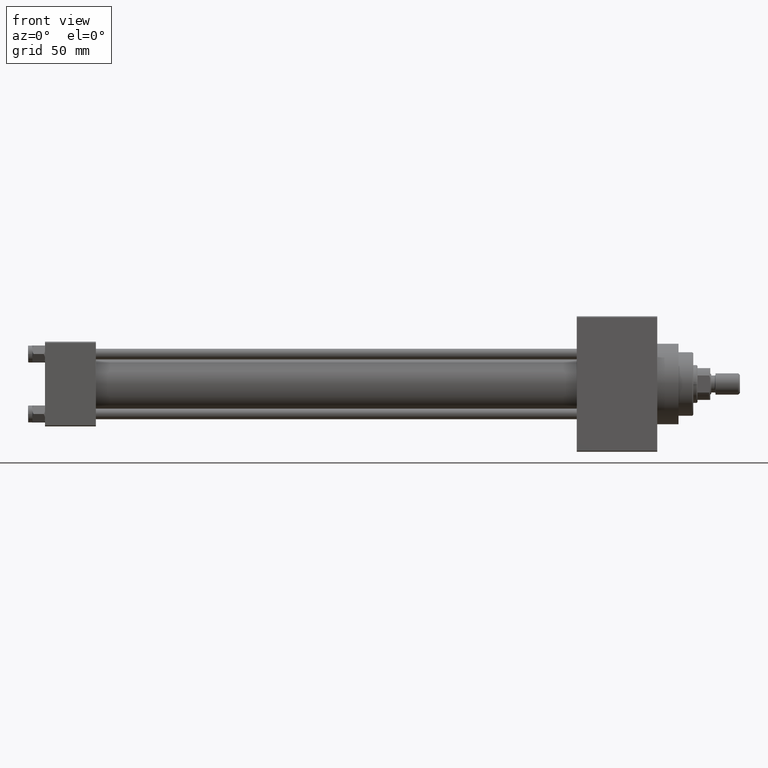
[diagram: clean part render]
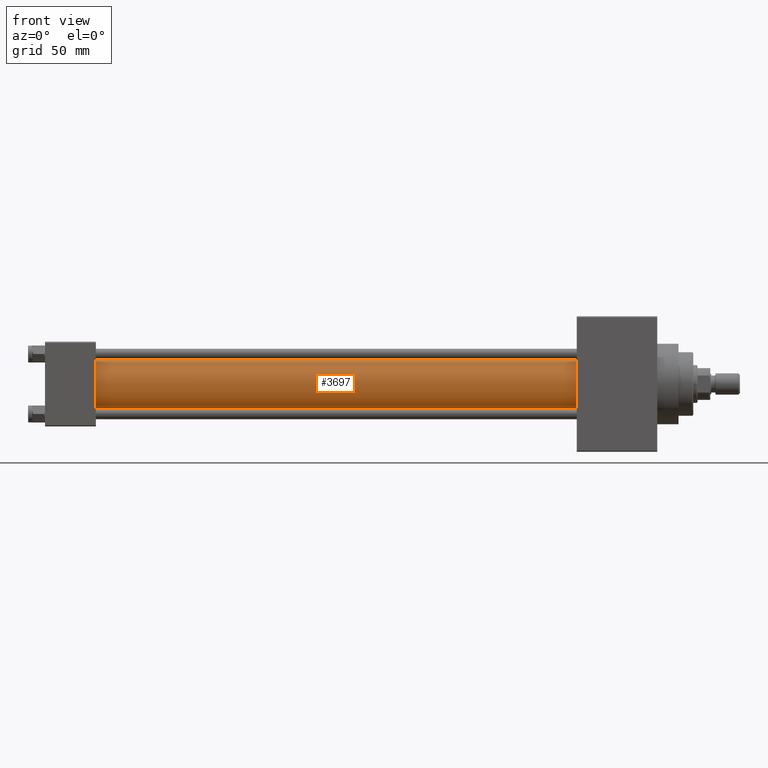
[diagram: same view with one face highlighted and labeled with its STEP entity id]
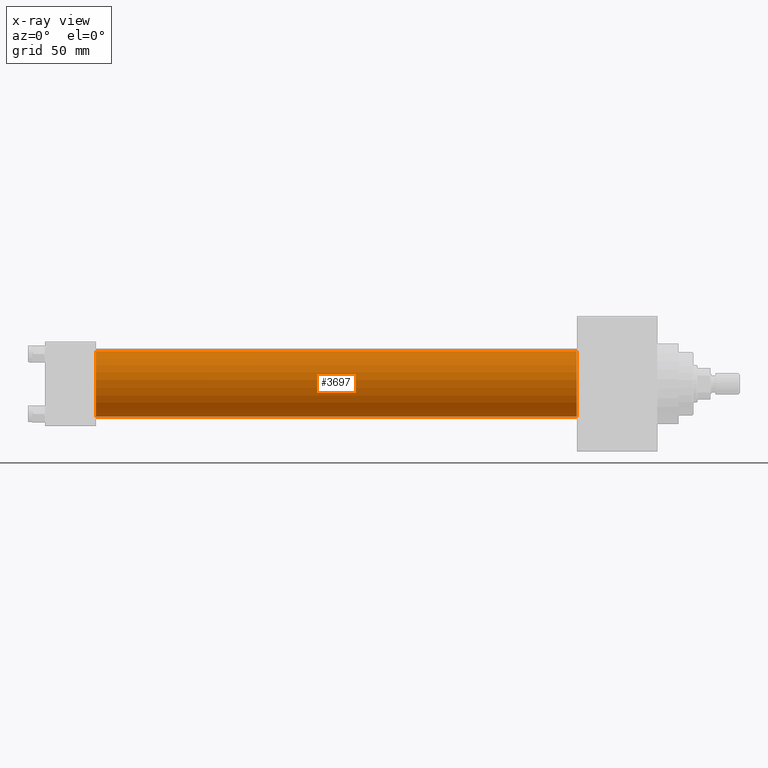
[diagram: x-ray of the same camera — body ghosted, the highlighted face saturated]
A machine part, front view. The second image highlights one B-rep face of the part: STEP entity #3697.
The next image is the same camera in x-ray: the body ghosted, the highlighted face saturated — about 0% of this face is hidden behind the body in this view.
In plain terms, the highlighted cylindrical surface (edge-blend (fillet) strip) has radius 15.5 mm, axis along (-1, -0, -0).
Its self-contained STEP definition (entity closure, byte-faithful):
#3582 = AXIS2_PLACEMENT_3D ( 'NONE', #23413, #38961, #46214 ) ;
#3697 = ADVANCED_FACE ( 'NONE', ( #35860 ), #15864, .T. ) ;
#5629 = VERTEX_POINT ( 'NONE', #40402 ) ;
#6224 = ORIENTED_EDGE ( 'NONE', *, *, #46402, .T. ) ;
#6326 = CARTESIAN_POINT ( 'NONE',  ( 23.99999999999999289, -7.038826752868134786E-16, -15.50000000000000000 ) ) ;
#10087 = DIRECTION ( 'NONE',  ( -1.000000000000000000, -0.000000000000000000, -0.000000000000000000 ) ) ;
#13102 = CIRCLE ( 'NONE', #39488, 15.50000000000000000 ) ;
#13773 = CARTESIAN_POINT ( 'NONE',  ( 23.99999999999999289, -2.602085213965210642E-15, 15.50000000000000000 ) ) ;
#15864 = CYLINDRICAL_SURFACE ( 'NONE', #26291, 15.50000000000000000 ) ;
#17770 = CARTESIAN_POINT ( 'NONE',  ( 251.0000000000000000, -2.602085213965210642E-15, 15.50000000000000000 ) ) ;
#18987 = EDGE_CURVE ( 'NONE', #23247, #43204, #39580, .T. ) ;
#21622 = DIRECTION ( 'NONE',  ( 1.000000000000000000, 0.000000000000000000, 0.000000000000000000 ) ) ;
#23247 = VERTEX_POINT ( 'NONE', #17770 ) ;
#23413 = CARTESIAN_POINT ( 'NONE',  ( 251.0000000000000000, -2.602085213965210642E-15, 0.000000000000000000 ) ) ;
#24346 = CIRCLE ( 'NONE', #3582, 15.50000000000000000 ) ;
#24975 = EDGE_LOOP ( 'NONE', ( #38200, #43587, #48324, #6224 ) ) ;
#25074 = LINE ( 'NONE', #43853, #29850 ) ;
#26291 = AXIS2_PLACEMENT_3D ( 'NONE', #27363, #31116, #39879 ) ;
#27363 = CARTESIAN_POINT ( 'NONE',  ( 251.0000000000000000, -2.602085213965210642E-15, 0.000000000000000000 ) ) ;
#29850 = VECTOR ( 'NONE', #10087, 1000.000000000000000 ) ;
#29857 = VECTOR ( 'NONE', #43311, 1000.000000000000000 ) ;
#31116 = DIRECTION ( 'NONE',  ( -1.000000000000000000, -0.000000000000000000, -0.000000000000000000 ) ) ;
#35860 = FACE_OUTER_BOUND ( 'NONE', #24975, .T. ) ;
#37152 = DIRECTION ( 'NONE',  ( 0.000000000000000000, 0.000000000000000000, 1.000000000000000000 ) ) ;
#38200 = ORIENTED_EDGE ( 'NONE', *, *, #42993, .F. ) ;
#38961 = DIRECTION ( 'NONE',  ( 1.000000000000000000, 0.000000000000000000, 0.000000000000000000 ) ) ;
#39488 = AXIS2_PLACEMENT_3D ( 'NONE', #40430, #21622, #37152 ) ;
#39580 = LINE ( 'NONE', #47797, #29857 ) ;
#39879 = DIRECTION ( 'NONE',  ( 0.000000000000000000, 0.000000000000000000, 1.000000000000000000 ) ) ;
#40402 = CARTESIAN_POINT ( 'NONE',  ( 251.0000000000000000, -7.038826752868134786E-16, -15.50000000000000000 ) ) ;
#40430 = CARTESIAN_POINT ( 'NONE',  ( 23.99999999999999289, -2.602085213965210642E-15, 0.000000000000000000 ) ) ;
#40446 = VERTEX_POINT ( 'NONE', #6326 ) ;
#42993 = EDGE_CURVE ( 'NONE', #5629, #40446, #25074, .T. ) ;
#43204 = VERTEX_POINT ( 'NONE', #13773 ) ;
#43311 = DIRECTION ( 'NONE',  ( -1.000000000000000000, -0.000000000000000000, -0.000000000000000000 ) ) ;
#43587 = ORIENTED_EDGE ( 'NONE', *, *, #48493, .F. ) ;
#43853 = CARTESIAN_POINT ( 'NONE',  ( 251.0000000000000000, -7.038826752868134786E-16, -15.50000000000000000 ) ) ;
#46214 = DIRECTION ( 'NONE',  ( 0.000000000000000000, 0.000000000000000000, -1.000000000000000000 ) ) ;
#46402 = EDGE_CURVE ( 'NONE', #43204, #40446, #13102, .T. ) ;
#47797 = CARTESIAN_POINT ( 'NONE',  ( 251.0000000000000000, -2.602085213965210642E-15, 15.50000000000000000 ) ) ;
#48324 = ORIENTED_EDGE ( 'NONE', *, *, #18987, .T. ) ;
#48493 = EDGE_CURVE ( 'NONE', #23247, #5629, #24346, .T. ) ;